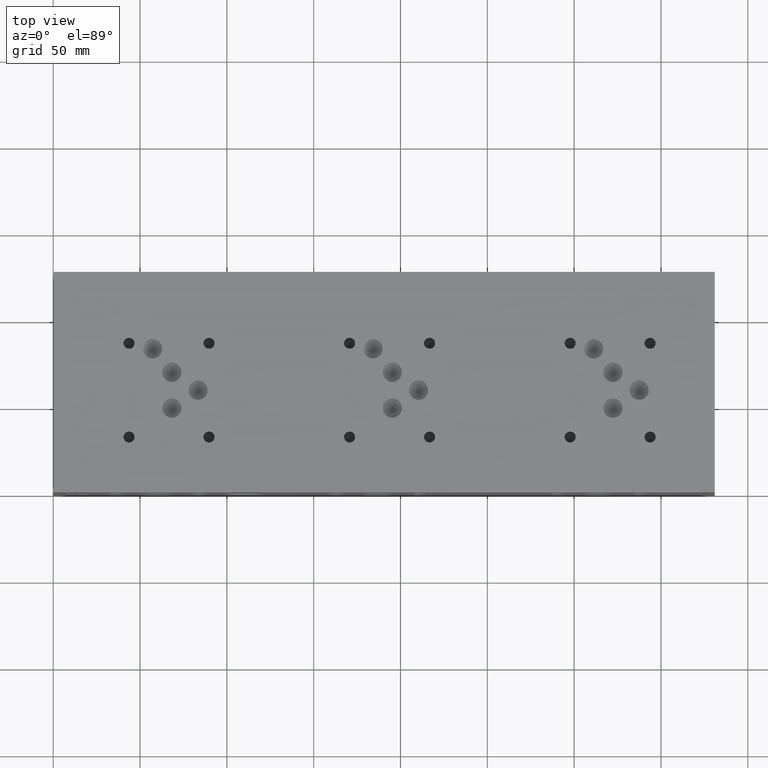
[diagram: clean part render]
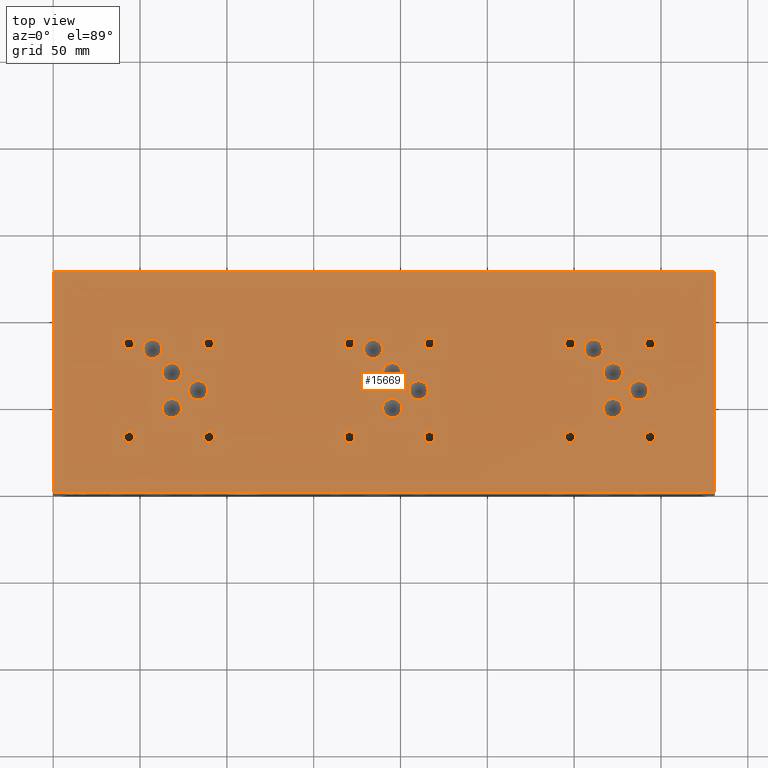
[diagram: same view with one face highlighted and labeled with its STEP entity id]
A machine part, top view. The second image highlights one B-rep face of the part: STEP entity #15669.
In plain terms, the highlighted planar face has unit normal (0, 0, 1).
Its self-contained STEP definition (entity closure, byte-faithful):
#604=CIRCLE('',#16625,5.5626);
#605=CIRCLE('',#16626,5.5626);
#608=CIRCLE('',#16631,5.5626);
#609=CIRCLE('',#16632,5.5626);
#612=CIRCLE('',#16637,5.5626);
#613=CIRCLE('',#16638,5.5626);
#616=CIRCLE('',#16643,5.5626);
#617=CIRCLE('',#16644,5.5626);
#620=CIRCLE('',#16649,5.5626);
#621=CIRCLE('',#16650,5.5626);
#624=CIRCLE('',#16655,5.5626);
#625=CIRCLE('',#16656,5.5626);
#628=CIRCLE('',#16661,5.5626);
#629=CIRCLE('',#16662,5.5626);
#632=CIRCLE('',#16667,5.5626);
#633=CIRCLE('',#16668,5.5626);
#636=CIRCLE('',#16673,5.5626);
#637=CIRCLE('',#16674,5.5626);
#640=CIRCLE('',#16679,5.5626);
#641=CIRCLE('',#16680,5.5626);
#644=CIRCLE('',#16685,5.5626);
#645=CIRCLE('',#16686,5.5626);
#648=CIRCLE('',#16691,5.5626);
#649=CIRCLE('',#16692,5.5626);
#655=CIRCLE('',#16701,3.175);
#656=CIRCLE('',#16702,3.175);
#662=CIRCLE('',#16712,3.175);
#663=CIRCLE('',#16713,3.175);
#669=CIRCLE('',#16723,3.175);
#670=CIRCLE('',#16724,3.175);
#676=CIRCLE('',#16734,3.175);
#677=CIRCLE('',#16735,3.175);
#683=CIRCLE('',#16745,3.175);
#684=CIRCLE('',#16746,3.175);
#690=CIRCLE('',#16756,3.175);
#691=CIRCLE('',#16757,3.175);
#697=CIRCLE('',#16767,3.175);
#698=CIRCLE('',#16768,3.175);
#704=CIRCLE('',#16778,3.175);
#705=CIRCLE('',#16779,3.175);
#711=CIRCLE('',#16789,3.175);
#712=CIRCLE('',#16790,3.175);
#718=CIRCLE('',#16800,3.175);
#719=CIRCLE('',#16801,3.175);
#725=CIRCLE('',#16811,3.175);
#726=CIRCLE('',#16812,3.175);
#732=CIRCLE('',#16822,3.175);
#733=CIRCLE('',#16823,3.175);
#897=FACE_BOUND('',#3133,.T.);
#898=FACE_BOUND('',#3134,.T.);
#899=FACE_BOUND('',#3135,.T.);
#900=FACE_BOUND('',#3136,.T.);
#901=FACE_BOUND('',#3137,.T.);
#902=FACE_BOUND('',#3138,.T.);
#903=FACE_BOUND('',#3139,.T.);
#904=FACE_BOUND('',#3140,.T.);
#905=FACE_BOUND('',#3141,.T.);
#906=FACE_BOUND('',#3142,.T.);
#907=FACE_BOUND('',#3143,.T.);
#908=FACE_BOUND('',#3144,.T.);
#909=FACE_BOUND('',#3145,.T.);
#910=FACE_BOUND('',#3146,.T.);
#911=FACE_BOUND('',#3147,.T.);
#912=FACE_BOUND('',#3148,.T.);
#913=FACE_BOUND('',#3149,.T.);
#914=FACE_BOUND('',#3150,.T.);
#915=FACE_BOUND('',#3151,.T.);
#916=FACE_BOUND('',#3152,.T.);
#917=FACE_BOUND('',#3153,.T.);
#918=FACE_BOUND('',#3154,.T.);
#919=FACE_BOUND('',#3155,.T.);
#920=FACE_BOUND('',#3156,.T.);
#1345=PLANE('',#16829);
#2157=FACE_OUTER_BOUND('',#3132,.T.);
#3132=EDGE_LOOP('',(#14129,#14130,#14131,#14132));
#3133=EDGE_LOOP('',(#14133,#14134));
#3134=EDGE_LOOP('',(#14135,#14136));
#3135=EDGE_LOOP('',(#14137,#14138));
#3136=EDGE_LOOP('',(#14139,#14140));
#3137=EDGE_LOOP('',(#14141,#14142));
#3138=EDGE_LOOP('',(#14143,#14144));
#3139=EDGE_LOOP('',(#14145,#14146));
#3140=EDGE_LOOP('',(#14147,#14148));
#3141=EDGE_LOOP('',(#14149,#14150));
#3142=EDGE_LOOP('',(#14151,#14152));
#3143=EDGE_LOOP('',(#14153,#14154));
#3144=EDGE_LOOP('',(#14155,#14156));
#3145=EDGE_LOOP('',(#14157,#14158));
#3146=EDGE_LOOP('',(#14159,#14160));
#3147=EDGE_LOOP('',(#14161,#14162));
#3148=EDGE_LOOP('',(#14163,#14164));
#3149=EDGE_LOOP('',(#14165,#14166));
#3150=EDGE_LOOP('',(#14167,#14168));
#3151=EDGE_LOOP('',(#14169,#14170));
#3152=EDGE_LOOP('',(#14171,#14172));
#3153=EDGE_LOOP('',(#14173,#14174));
#3154=EDGE_LOOP('',(#14175,#14176));
#3155=EDGE_LOOP('',(#14177,#14178));
#3156=EDGE_LOOP('',(#14179,#14180));
#3192=LINE('',#20668,#4526);
#3252=LINE('',#20975,#4586);
#3592=LINE('',#23157,#4926);
#4491=LINE('',#27115,#5825);
#4526=VECTOR('',#16887,10.);
#4586=VECTOR('',#17033,10.);
#4926=VECTOR('',#17613,10.);
#5825=VECTOR('',#20450,10.);
#6190=VERTEX_POINT('',#20665);
#6191=VERTEX_POINT('',#20667);
#6266=VERTEX_POINT('',#20972);
#6267=VERTEX_POINT('',#20974);
#7543=VERTEX_POINT('',#26700);
#7544=VERTEX_POINT('',#26701);
#7548=VERTEX_POINT('',#26713);
#7549=VERTEX_POINT('',#26714);
#7553=VERTEX_POINT('',#26726);
#7554=VERTEX_POINT('',#26727);
#7558=VERTEX_POINT('',#26739);
#7559=VERTEX_POINT('',#26740);
#7563=VERTEX_POINT('',#26752);
#7564=VERTEX_POINT('',#26753);
#7568=VERTEX_POINT('',#26765);
#7569=VERTEX_POINT('',#26766);
#7573=VERTEX_POINT('',#26778);
#7574=VERTEX_POINT('',#26779);
#7578=VERTEX_POINT('',#26791);
#7579=VERTEX_POINT('',#26792);
#7583=VERTEX_POINT('',#26804);
#7584=VERTEX_POINT('',#26805);
#7588=VERTEX_POINT('',#26817);
#7589=VERTEX_POINT('',#26818);
#7593=VERTEX_POINT('',#26830);
#7594=VERTEX_POINT('',#26831);
#7598=VERTEX_POINT('',#26843);
#7599=VERTEX_POINT('',#26844);
#7606=VERTEX_POINT('',#26863);
#7607=VERTEX_POINT('',#26864);
#7614=VERTEX_POINT('',#26885);
#7615=VERTEX_POINT('',#26886);
#7622=VERTEX_POINT('',#26907);
#7623=VERTEX_POINT('',#26908);
#7630=VERTEX_POINT('',#26929);
#7631=VERTEX_POINT('',#26930);
#7638=VERTEX_POINT('',#26951);
#7639=VERTEX_POINT('',#26952);
#7646=VERTEX_POINT('',#26973);
#7647=VERTEX_POINT('',#26974);
#7654=VERTEX_POINT('',#26995);
#7655=VERTEX_POINT('',#26996);
#7662=VERTEX_POINT('',#27017);
#7663=VERTEX_POINT('',#27018);
#7670=VERTEX_POINT('',#27039);
#7671=VERTEX_POINT('',#27040);
#7678=VERTEX_POINT('',#27061);
#7679=VERTEX_POINT('',#27062);
#7686=VERTEX_POINT('',#27083);
#7687=VERTEX_POINT('',#27084);
#7694=VERTEX_POINT('',#27105);
#7695=VERTEX_POINT('',#27106);
#7746=EDGE_CURVE('',#6191,#6190,#3192,.T.);
#7846=EDGE_CURVE('',#6267,#6266,#3252,.T.);
#8380=EDGE_CURVE('',#6266,#6191,#3592,.T.);
#9668=EDGE_CURVE('',#7543,#7544,#604,.T.);
#9669=EDGE_CURVE('',#7544,#7543,#605,.T.);
#9674=EDGE_CURVE('',#7548,#7549,#608,.T.);
#9675=EDGE_CURVE('',#7549,#7548,#609,.T.);
#9680=EDGE_CURVE('',#7553,#7554,#612,.T.);
#9681=EDGE_CURVE('',#7554,#7553,#613,.T.);
#9686=EDGE_CURVE('',#7558,#7559,#616,.T.);
#9687=EDGE_CURVE('',#7559,#7558,#617,.T.);
#9692=EDGE_CURVE('',#7563,#7564,#620,.T.);
#9693=EDGE_CURVE('',#7564,#7563,#621,.T.);
#9698=EDGE_CURVE('',#7568,#7569,#624,.T.);
#9699=EDGE_CURVE('',#7569,#7568,#625,.T.);
#9704=EDGE_CURVE('',#7573,#7574,#628,.T.);
#9705=EDGE_CURVE('',#7574,#7573,#629,.T.);
#9710=EDGE_CURVE('',#7578,#7579,#632,.T.);
#9711=EDGE_CURVE('',#7579,#7578,#633,.T.);
#9716=EDGE_CURVE('',#7583,#7584,#636,.T.);
#9717=EDGE_CURVE('',#7584,#7583,#637,.T.);
#9722=EDGE_CURVE('',#7588,#7589,#640,.T.);
#9723=EDGE_CURVE('',#7589,#7588,#641,.T.);
#9728=EDGE_CURVE('',#7593,#7594,#644,.T.);
#9729=EDGE_CURVE('',#7594,#7593,#645,.T.);
#9734=EDGE_CURVE('',#7598,#7599,#648,.T.);
#9735=EDGE_CURVE('',#7599,#7598,#649,.T.);
#9743=EDGE_CURVE('',#7606,#7607,#655,.T.);
#9744=EDGE_CURVE('',#7607,#7606,#656,.T.);
#9753=EDGE_CURVE('',#7614,#7615,#662,.T.);
#9754=EDGE_CURVE('',#7615,#7614,#663,.T.);
#9763=EDGE_CURVE('',#7622,#7623,#669,.T.);
#9764=EDGE_CURVE('',#7623,#7622,#670,.T.);
#9773=EDGE_CURVE('',#7630,#7631,#676,.T.);
#9774=EDGE_CURVE('',#7631,#7630,#677,.T.);
#9783=EDGE_CURVE('',#7638,#7639,#683,.T.);
#9784=EDGE_CURVE('',#7639,#7638,#684,.T.);
#9793=EDGE_CURVE('',#7646,#7647,#690,.T.);
#9794=EDGE_CURVE('',#7647,#7646,#691,.T.);
#9803=EDGE_CURVE('',#7654,#7655,#697,.T.);
#9804=EDGE_CURVE('',#7655,#7654,#698,.T.);
#9813=EDGE_CURVE('',#7662,#7663,#704,.T.);
#9814=EDGE_CURVE('',#7663,#7662,#705,.T.);
#9823=EDGE_CURVE('',#7670,#7671,#711,.T.);
#9824=EDGE_CURVE('',#7671,#7670,#712,.T.);
#9833=EDGE_CURVE('',#7678,#7679,#718,.T.);
#9834=EDGE_CURVE('',#7679,#7678,#719,.T.);
#9843=EDGE_CURVE('',#7686,#7687,#725,.T.);
#9844=EDGE_CURVE('',#7687,#7686,#726,.T.);
#9853=EDGE_CURVE('',#7694,#7695,#732,.T.);
#9854=EDGE_CURVE('',#7695,#7694,#733,.T.);
#9858=EDGE_CURVE('',#6190,#6267,#4491,.T.);
#14129=ORIENTED_EDGE('',*,*,#8380,.T.);
#14130=ORIENTED_EDGE('',*,*,#7746,.T.);
#14131=ORIENTED_EDGE('',*,*,#9858,.T.);
#14132=ORIENTED_EDGE('',*,*,#7846,.T.);
#14133=ORIENTED_EDGE('',*,*,#9668,.T.);
#14134=ORIENTED_EDGE('',*,*,#9669,.T.);
#14135=ORIENTED_EDGE('',*,*,#9674,.T.);
#14136=ORIENTED_EDGE('',*,*,#9675,.T.);
#14137=ORIENTED_EDGE('',*,*,#9680,.T.);
#14138=ORIENTED_EDGE('',*,*,#9681,.T.);
#14139=ORIENTED_EDGE('',*,*,#9686,.T.);
#14140=ORIENTED_EDGE('',*,*,#9687,.T.);
#14141=ORIENTED_EDGE('',*,*,#9692,.T.);
#14142=ORIENTED_EDGE('',*,*,#9693,.T.);
#14143=ORIENTED_EDGE('',*,*,#9698,.T.);
#14144=ORIENTED_EDGE('',*,*,#9699,.T.);
#14145=ORIENTED_EDGE('',*,*,#9704,.T.);
#14146=ORIENTED_EDGE('',*,*,#9705,.T.);
#14147=ORIENTED_EDGE('',*,*,#9710,.T.);
#14148=ORIENTED_EDGE('',*,*,#9711,.T.);
#14149=ORIENTED_EDGE('',*,*,#9716,.T.);
#14150=ORIENTED_EDGE('',*,*,#9717,.T.);
#14151=ORIENTED_EDGE('',*,*,#9722,.T.);
#14152=ORIENTED_EDGE('',*,*,#9723,.T.);
#14153=ORIENTED_EDGE('',*,*,#9728,.T.);
#14154=ORIENTED_EDGE('',*,*,#9729,.T.);
#14155=ORIENTED_EDGE('',*,*,#9734,.T.);
#14156=ORIENTED_EDGE('',*,*,#9735,.T.);
#14157=ORIENTED_EDGE('',*,*,#9743,.T.);
#14158=ORIENTED_EDGE('',*,*,#9744,.T.);
#14159=ORIENTED_EDGE('',*,*,#9753,.T.);
#14160=ORIENTED_EDGE('',*,*,#9754,.T.);
#14161=ORIENTED_EDGE('',*,*,#9763,.T.);
#14162=ORIENTED_EDGE('',*,*,#9764,.T.);
#14163=ORIENTED_EDGE('',*,*,#9773,.T.);
#14164=ORIENTED_EDGE('',*,*,#9774,.T.);
#14165=ORIENTED_EDGE('',*,*,#9783,.T.);
#14166=ORIENTED_EDGE('',*,*,#9784,.T.);
#14167=ORIENTED_EDGE('',*,*,#9793,.T.);
#14168=ORIENTED_EDGE('',*,*,#9794,.T.);
#14169=ORIENTED_EDGE('',*,*,#9803,.T.);
#14170=ORIENTED_EDGE('',*,*,#9804,.T.);
#14171=ORIENTED_EDGE('',*,*,#9813,.T.);
#14172=ORIENTED_EDGE('',*,*,#9814,.T.);
#14173=ORIENTED_EDGE('',*,*,#9823,.T.);
#14174=ORIENTED_EDGE('',*,*,#9824,.T.);
#14175=ORIENTED_EDGE('',*,*,#9833,.T.);
#14176=ORIENTED_EDGE('',*,*,#9834,.T.);
#14177=ORIENTED_EDGE('',*,*,#9843,.T.);
#14178=ORIENTED_EDGE('',*,*,#9844,.T.);
#14179=ORIENTED_EDGE('',*,*,#9853,.T.);
#14180=ORIENTED_EDGE('',*,*,#9854,.T.);
#15669=ADVANCED_FACE('',(#2157,#897,#898,#899,#900,#901,#902,#903,#904,
#905,#906,#907,#908,#909,#910,#911,#912,#913,#914,#915,#916,#917,#918,#919,
#920),#1345,.T.);
#16625=AXIS2_PLACEMENT_3D('',#26702,#19986,#19987);
#16626=AXIS2_PLACEMENT_3D('',#26703,#19988,#19989);
#16631=AXIS2_PLACEMENT_3D('',#26715,#20000,#20001);
#16632=AXIS2_PLACEMENT_3D('',#26716,#20002,#20003);
#16637=AXIS2_PLACEMENT_3D('',#26728,#20014,#20015);
#16638=AXIS2_PLACEMENT_3D('',#26729,#20016,#20017);
#16643=AXIS2_PLACEMENT_3D('',#26741,#20028,#20029);
#16644=AXIS2_PLACEMENT_3D('',#26742,#20030,#20031);
#16649=AXIS2_PLACEMENT_3D('',#26754,#20042,#20043);
#16650=AXIS2_PLACEMENT_3D('',#26755,#20044,#20045);
#16655=AXIS2_PLACEMENT_3D('',#26767,#20056,#20057);
#16656=AXIS2_PLACEMENT_3D('',#26768,#20058,#20059);
#16661=AXIS2_PLACEMENT_3D('',#26780,#20070,#20071);
#16662=AXIS2_PLACEMENT_3D('',#26781,#20072,#20073);
#16667=AXIS2_PLACEMENT_3D('',#26793,#20084,#20085);
#16668=AXIS2_PLACEMENT_3D('',#26794,#20086,#20087);
#16673=AXIS2_PLACEMENT_3D('',#26806,#20098,#20099);
#16674=AXIS2_PLACEMENT_3D('',#26807,#20100,#20101);
#16679=AXIS2_PLACEMENT_3D('',#26819,#20112,#20113);
#16680=AXIS2_PLACEMENT_3D('',#26820,#20114,#20115);
#16685=AXIS2_PLACEMENT_3D('',#26832,#20126,#20127);
#16686=AXIS2_PLACEMENT_3D('',#26833,#20128,#20129);
#16691=AXIS2_PLACEMENT_3D('',#26845,#20140,#20141);
#16692=AXIS2_PLACEMENT_3D('',#26846,#20142,#20143);
#16701=AXIS2_PLACEMENT_3D('',#26865,#20162,#20163);
#16702=AXIS2_PLACEMENT_3D('',#26866,#20164,#20165);
#16712=AXIS2_PLACEMENT_3D('',#26887,#20187,#20188);
#16713=AXIS2_PLACEMENT_3D('',#26888,#20189,#20190);
#16723=AXIS2_PLACEMENT_3D('',#26909,#20212,#20213);
#16724=AXIS2_PLACEMENT_3D('',#26910,#20214,#20215);
#16734=AXIS2_PLACEMENT_3D('',#26931,#20237,#20238);
#16735=AXIS2_PLACEMENT_3D('',#26932,#20239,#20240);
#16745=AXIS2_PLACEMENT_3D('',#26953,#20262,#20263);
#16746=AXIS2_PLACEMENT_3D('',#26954,#20264,#20265);
#16756=AXIS2_PLACEMENT_3D('',#26975,#20287,#20288);
#16757=AXIS2_PLACEMENT_3D('',#26976,#20289,#20290);
#16767=AXIS2_PLACEMENT_3D('',#26997,#20312,#20313);
#16768=AXIS2_PLACEMENT_3D('',#26998,#20314,#20315);
#16778=AXIS2_PLACEMENT_3D('',#27019,#20337,#20338);
#16779=AXIS2_PLACEMENT_3D('',#27020,#20339,#20340);
#16789=AXIS2_PLACEMENT_3D('',#27041,#20362,#20363);
#16790=AXIS2_PLACEMENT_3D('',#27042,#20364,#20365);
#16800=AXIS2_PLACEMENT_3D('',#27063,#20387,#20388);
#16801=AXIS2_PLACEMENT_3D('',#27064,#20389,#20390);
#16811=AXIS2_PLACEMENT_3D('',#27085,#20412,#20413);
#16812=AXIS2_PLACEMENT_3D('',#27086,#20414,#20415);
#16822=AXIS2_PLACEMENT_3D('',#27107,#20437,#20438);
#16823=AXIS2_PLACEMENT_3D('',#27108,#20439,#20440);
#16829=AXIS2_PLACEMENT_3D('',#27118,#20455,#20456);
#16887=DIRECTION('',(0.,1.,0.));
#17033=DIRECTION('',(0.,-1.,0.));
#17613=DIRECTION('',(1.,0.,0.));
#19986=DIRECTION('center_axis',(0.,0.,-1.));
#19987=DIRECTION('ref_axis',(1.,0.,0.));
#19988=DIRECTION('center_axis',(0.,0.,-1.));
#19989=DIRECTION('ref_axis',(1.,0.,0.));
#20000=DIRECTION('center_axis',(0.,0.,-1.));
#20001=DIRECTION('ref_axis',(1.,0.,0.));
#20002=DIRECTION('center_axis',(0.,0.,-1.));
#20003=DIRECTION('ref_axis',(1.,0.,0.));
#20014=DIRECTION('center_axis',(0.,0.,-1.));
#20015=DIRECTION('ref_axis',(1.,0.,0.));
#20016=DIRECTION('center_axis',(0.,0.,-1.));
#20017=DIRECTION('ref_axis',(1.,0.,0.));
#20028=DIRECTION('center_axis',(0.,0.,-1.));
#20029=DIRECTION('ref_axis',(1.,0.,0.));
#20030=DIRECTION('center_axis',(0.,0.,-1.));
#20031=DIRECTION('ref_axis',(1.,0.,0.));
#20042=DIRECTION('center_axis',(0.,0.,-1.));
#20043=DIRECTION('ref_axis',(1.,0.,0.));
#20044=DIRECTION('center_axis',(0.,0.,-1.));
#20045=DIRECTION('ref_axis',(1.,0.,0.));
#20056=DIRECTION('center_axis',(0.,0.,-1.));
#20057=DIRECTION('ref_axis',(1.,0.,0.));
#20058=DIRECTION('center_axis',(0.,0.,-1.));
#20059=DIRECTION('ref_axis',(1.,0.,0.));
#20070=DIRECTION('center_axis',(0.,0.,-1.));
#20071=DIRECTION('ref_axis',(1.,0.,0.));
#20072=DIRECTION('center_axis',(0.,0.,-1.));
#20073=DIRECTION('ref_axis',(1.,0.,0.));
#20084=DIRECTION('center_axis',(0.,0.,-1.));
#20085=DIRECTION('ref_axis',(1.,0.,0.));
#20086=DIRECTION('center_axis',(0.,0.,-1.));
#20087=DIRECTION('ref_axis',(1.,0.,0.));
#20098=DIRECTION('center_axis',(0.,0.,-1.));
#20099=DIRECTION('ref_axis',(1.,0.,0.));
#20100=DIRECTION('center_axis',(0.,0.,-1.));
#20101=DIRECTION('ref_axis',(1.,0.,0.));
#20112=DIRECTION('center_axis',(0.,0.,-1.));
#20113=DIRECTION('ref_axis',(1.,0.,0.));
#20114=DIRECTION('center_axis',(0.,0.,-1.));
#20115=DIRECTION('ref_axis',(1.,0.,0.));
#20126=DIRECTION('center_axis',(0.,0.,-1.));
#20127=DIRECTION('ref_axis',(1.,0.,0.));
#20128=DIRECTION('center_axis',(0.,0.,-1.));
#20129=DIRECTION('ref_axis',(1.,0.,0.));
#20140=DIRECTION('center_axis',(0.,0.,-1.));
#20141=DIRECTION('ref_axis',(1.,0.,0.));
#20142=DIRECTION('center_axis',(0.,0.,-1.));
#20143=DIRECTION('ref_axis',(1.,0.,0.));
#20162=DIRECTION('center_axis',(0.,0.,-1.));
#20163=DIRECTION('ref_axis',(1.,0.,0.));
#20164=DIRECTION('center_axis',(0.,0.,-1.));
#20165=DIRECTION('ref_axis',(1.,0.,0.));
#20187=DIRECTION('center_axis',(0.,0.,-1.));
#20188=DIRECTION('ref_axis',(1.,0.,0.));
#20189=DIRECTION('center_axis',(0.,0.,-1.));
#20190=DIRECTION('ref_axis',(1.,0.,0.));
#20212=DIRECTION('center_axis',(0.,0.,-1.));
#20213=DIRECTION('ref_axis',(1.,0.,0.));
#20214=DIRECTION('center_axis',(0.,0.,-1.));
#20215=DIRECTION('ref_axis',(1.,0.,0.));
#20237=DIRECTION('center_axis',(0.,0.,-1.));
#20238=DIRECTION('ref_axis',(1.,0.,0.));
#20239=DIRECTION('center_axis',(0.,0.,-1.));
#20240=DIRECTION('ref_axis',(1.,0.,0.));
#20262=DIRECTION('center_axis',(0.,0.,-1.));
#20263=DIRECTION('ref_axis',(1.,0.,0.));
#20264=DIRECTION('center_axis',(0.,0.,-1.));
#20265=DIRECTION('ref_axis',(1.,0.,0.));
#20287=DIRECTION('center_axis',(0.,0.,-1.));
#20288=DIRECTION('ref_axis',(1.,0.,0.));
#20289=DIRECTION('center_axis',(0.,0.,-1.));
#20290=DIRECTION('ref_axis',(1.,0.,0.));
#20312=DIRECTION('center_axis',(0.,0.,-1.));
#20313=DIRECTION('ref_axis',(1.,0.,0.));
#20314=DIRECTION('center_axis',(0.,0.,-1.));
#20315=DIRECTION('ref_axis',(1.,0.,0.));
#20337=DIRECTION('center_axis',(0.,0.,-1.));
#20338=DIRECTION('ref_axis',(1.,0.,0.));
#20339=DIRECTION('center_axis',(0.,0.,-1.));
#20340=DIRECTION('ref_axis',(1.,0.,0.));
#20362=DIRECTION('center_axis',(0.,0.,-1.));
#20363=DIRECTION('ref_axis',(1.,0.,0.));
#20364=DIRECTION('center_axis',(0.,0.,-1.));
#20365=DIRECTION('ref_axis',(1.,0.,0.));
#20387=DIRECTION('center_axis',(0.,0.,-1.));
#20388=DIRECTION('ref_axis',(1.,0.,0.));
#20389=DIRECTION('center_axis',(0.,0.,-1.));
#20390=DIRECTION('ref_axis',(1.,0.,0.));
#20412=DIRECTION('center_axis',(0.,0.,-1.));
#20413=DIRECTION('ref_axis',(1.,0.,0.));
#20414=DIRECTION('center_axis',(0.,0.,-1.));
#20415=DIRECTION('ref_axis',(1.,0.,0.));
#20437=DIRECTION('center_axis',(0.,0.,-1.));
#20438=DIRECTION('ref_axis',(1.,0.,0.));
#20439=DIRECTION('center_axis',(0.,0.,-1.));
#20440=DIRECTION('ref_axis',(1.,0.,0.));
#20450=DIRECTION('',(-1.,0.,0.));
#20455=DIRECTION('center_axis',(0.,0.,1.));
#20456=DIRECTION('ref_axis',(1.,0.,0.));
#20665=CARTESIAN_POINT('',(381.,127.,127.));
#20667=CARTESIAN_POINT('',(381.,0.,127.));
#20668=CARTESIAN_POINT('',(381.,0.,127.));
#20972=CARTESIAN_POINT('',(0.,0.,127.));
#20974=CARTESIAN_POINT('',(0.,127.,127.));
#20975=CARTESIAN_POINT('',(0.,127.,127.));
#23157=CARTESIAN_POINT('',(0.,0.,127.));
#26700=CARTESIAN_POINT('',(327.8632,69.0626,127.));
#26701=CARTESIAN_POINT('',(316.738,69.0626,127.));
#26702=CARTESIAN_POINT('Origin',(322.3006,69.0626,127.));
#26703=CARTESIAN_POINT('Origin',(322.3006,69.0626,127.));
#26713=CARTESIAN_POINT('',(342.9508,58.7502,127.));
#26714=CARTESIAN_POINT('',(331.8256,58.7502,127.));
#26715=CARTESIAN_POINT('Origin',(337.3882,58.7502,127.));
#26716=CARTESIAN_POINT('Origin',(337.3882,58.7502,127.));
#26726=CARTESIAN_POINT('',(200.8632,69.0626,127.));
#26727=CARTESIAN_POINT('',(189.738,69.0626,127.));
#26728=CARTESIAN_POINT('Origin',(195.3006,69.0626,127.));
#26729=CARTESIAN_POINT('Origin',(195.3006,69.0626,127.));
#26739=CARTESIAN_POINT('',(215.9508,58.7502,127.));
#26740=CARTESIAN_POINT('',(204.8256,58.7502,127.));
#26741=CARTESIAN_POINT('Origin',(210.3882,58.7502,127.));
#26742=CARTESIAN_POINT('Origin',(210.3882,58.7502,127.));
#26752=CARTESIAN_POINT('',(73.8505,69.06768,127.));
#26753=CARTESIAN_POINT('',(62.7253,69.06768,127.));
#26754=CARTESIAN_POINT('Origin',(68.2879,69.06768,127.));
#26755=CARTESIAN_POINT('Origin',(68.2879,69.06768,127.));
#26765=CARTESIAN_POINT('',(88.9508,58.7502,127.));
#26766=CARTESIAN_POINT('',(77.8256,58.7502,127.));
#26767=CARTESIAN_POINT('Origin',(83.3882,58.7502,127.));
#26768=CARTESIAN_POINT('Origin',(83.3882,58.7502,127.));
#26778=CARTESIAN_POINT('',(62.738,82.5754,127.));
#26779=CARTESIAN_POINT('',(51.6128,82.5754,127.));
#26780=CARTESIAN_POINT('Origin',(57.1754,82.5754,127.));
#26781=CARTESIAN_POINT('Origin',(57.1754,82.5754,127.));
#26791=CARTESIAN_POINT('',(73.85558,48.43272,127.));
#26792=CARTESIAN_POINT('',(62.73038,48.43272,127.));
#26793=CARTESIAN_POINT('Origin',(68.29298,48.43272,127.));
#26794=CARTESIAN_POINT('Origin',(68.29298,48.43272,127.));
#26804=CARTESIAN_POINT('',(189.738,82.5754,127.));
#26805=CARTESIAN_POINT('',(178.6128,82.5754,127.));
#26806=CARTESIAN_POINT('Origin',(184.1754,82.5754,127.));
#26807=CARTESIAN_POINT('Origin',(184.1754,82.5754,127.));
#26817=CARTESIAN_POINT('',(200.8632,48.4378,127.));
#26818=CARTESIAN_POINT('',(189.738,48.4378,127.));
#26819=CARTESIAN_POINT('Origin',(195.3006,48.4378,127.));
#26820=CARTESIAN_POINT('Origin',(195.3006,48.4378,127.));
#26830=CARTESIAN_POINT('',(316.738,82.5754,127.));
#26831=CARTESIAN_POINT('',(305.6128,82.5754,127.));
#26832=CARTESIAN_POINT('Origin',(311.1754,82.5754,127.));
#26833=CARTESIAN_POINT('Origin',(311.1754,82.5754,127.));
#26843=CARTESIAN_POINT('',(327.8632,48.4378,127.));
#26844=CARTESIAN_POINT('',(316.738,48.4378,127.));
#26845=CARTESIAN_POINT('Origin',(322.3006,48.4378,127.));
#26846=CARTESIAN_POINT('Origin',(322.3006,48.4378,127.));
#26863=CARTESIAN_POINT('',(346.8878,31.7754,127.));
#26864=CARTESIAN_POINT('',(340.5378,31.7754,127.));
#26865=CARTESIAN_POINT('Origin',(343.7128,31.7754,127.));
#26866=CARTESIAN_POINT('Origin',(343.7128,31.7754,127.));
#26885=CARTESIAN_POINT('',(300.8376,85.7504,127.));
#26886=CARTESIAN_POINT('',(294.4876,85.7504,127.));
#26887=CARTESIAN_POINT('Origin',(297.6626,85.7504,127.));
#26888=CARTESIAN_POINT('Origin',(297.6626,85.7504,127.));
#26907=CARTESIAN_POINT('',(219.8878,31.7754,127.));
#26908=CARTESIAN_POINT('',(213.5378,31.7754,127.));
#26909=CARTESIAN_POINT('Origin',(216.7128,31.7754,127.));
#26910=CARTESIAN_POINT('Origin',(216.7128,31.7754,127.));
#26929=CARTESIAN_POINT('',(173.8376,85.7504,127.));
#26930=CARTESIAN_POINT('',(167.4876,85.7504,127.));
#26931=CARTESIAN_POINT('Origin',(170.6626,85.7504,127.));
#26932=CARTESIAN_POINT('Origin',(170.6626,85.7504,127.));
#26951=CARTESIAN_POINT('',(92.8878,31.7881,127.));
#26952=CARTESIAN_POINT('',(86.5378,31.7881,127.));
#26953=CARTESIAN_POINT('Origin',(89.7128,31.7881,127.));
#26954=CARTESIAN_POINT('Origin',(89.7128,31.7881,127.));
#26973=CARTESIAN_POINT('',(46.8376,85.7504,127.));
#26974=CARTESIAN_POINT('',(40.4876,85.7504,127.));
#26975=CARTESIAN_POINT('Origin',(43.6626,85.7504,127.));
#26976=CARTESIAN_POINT('Origin',(43.6626,85.7504,127.));
#26995=CARTESIAN_POINT('',(92.8878,85.7504,127.));
#26996=CARTESIAN_POINT('',(86.5378,85.7504,127.));
#26997=CARTESIAN_POINT('Origin',(89.7128,85.7504,127.));
#26998=CARTESIAN_POINT('Origin',(89.7128,85.7504,127.));
#27017=CARTESIAN_POINT('',(46.8376,31.7754,127.));
#27018=CARTESIAN_POINT('',(40.4876,31.7754,127.));
#27019=CARTESIAN_POINT('Origin',(43.6626,31.7754,127.));
#27020=CARTESIAN_POINT('Origin',(43.6626,31.7754,127.));
#27039=CARTESIAN_POINT('',(219.8878,85.7504,127.));
#27040=CARTESIAN_POINT('',(213.5378,85.7504,127.));
#27041=CARTESIAN_POINT('Origin',(216.7128,85.7504,127.));
#27042=CARTESIAN_POINT('Origin',(216.7128,85.7504,127.));
#27061=CARTESIAN_POINT('',(173.8376,31.7754,127.));
#27062=CARTESIAN_POINT('',(167.4876,31.7754,127.));
#27063=CARTESIAN_POINT('Origin',(170.6626,31.7754,127.));
#27064=CARTESIAN_POINT('Origin',(170.6626,31.7754,127.));
#27083=CARTESIAN_POINT('',(346.8878,85.7504,127.));
#27084=CARTESIAN_POINT('',(340.5378,85.7504,127.));
#27085=CARTESIAN_POINT('Origin',(343.7128,85.7504,127.));
#27086=CARTESIAN_POINT('Origin',(343.7128,85.7504,127.));
#27105=CARTESIAN_POINT('',(300.8376,31.7754,127.));
#27106=CARTESIAN_POINT('',(294.4876,31.7754,127.));
#27107=CARTESIAN_POINT('Origin',(297.6626,31.7754,127.));
#27108=CARTESIAN_POINT('Origin',(297.6626,31.7754,127.));
#27115=CARTESIAN_POINT('',(381.,127.,127.));
#27118=CARTESIAN_POINT('Origin',(190.5,63.5,127.));